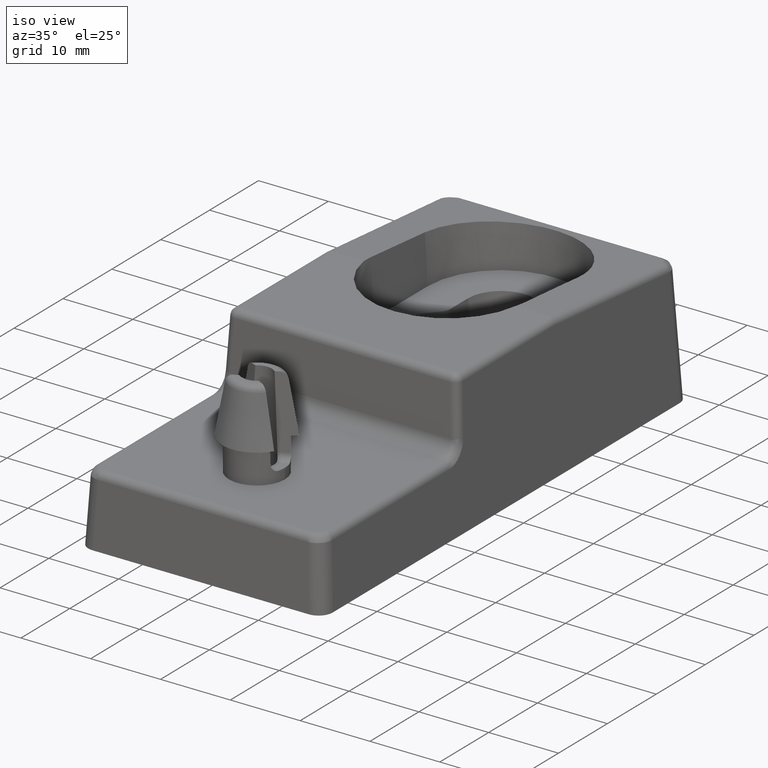
[diagram: clean part render]
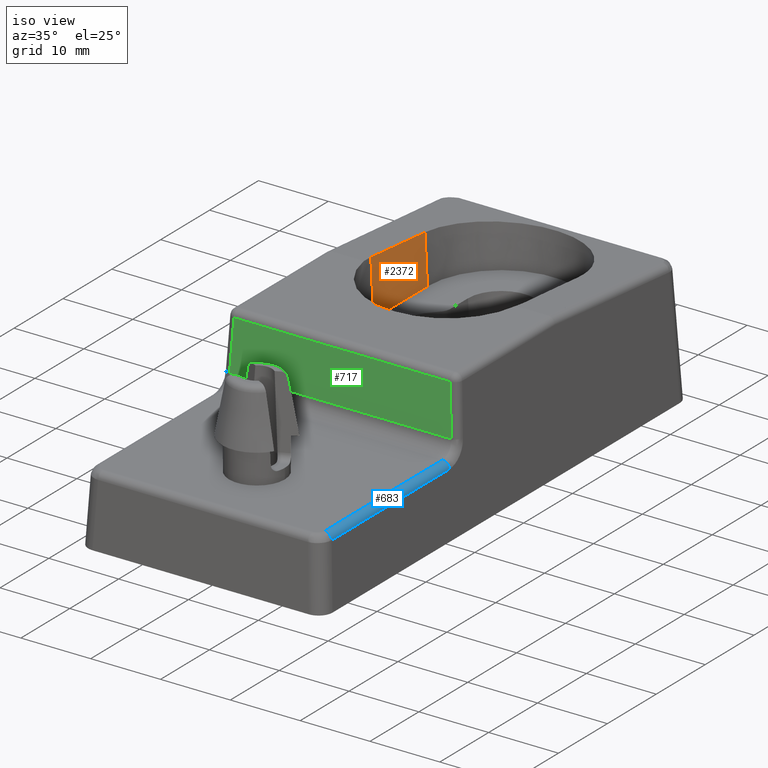
[diagram: same view with three faces highlighted in distinct colors, each labeled with its STEP entity id]
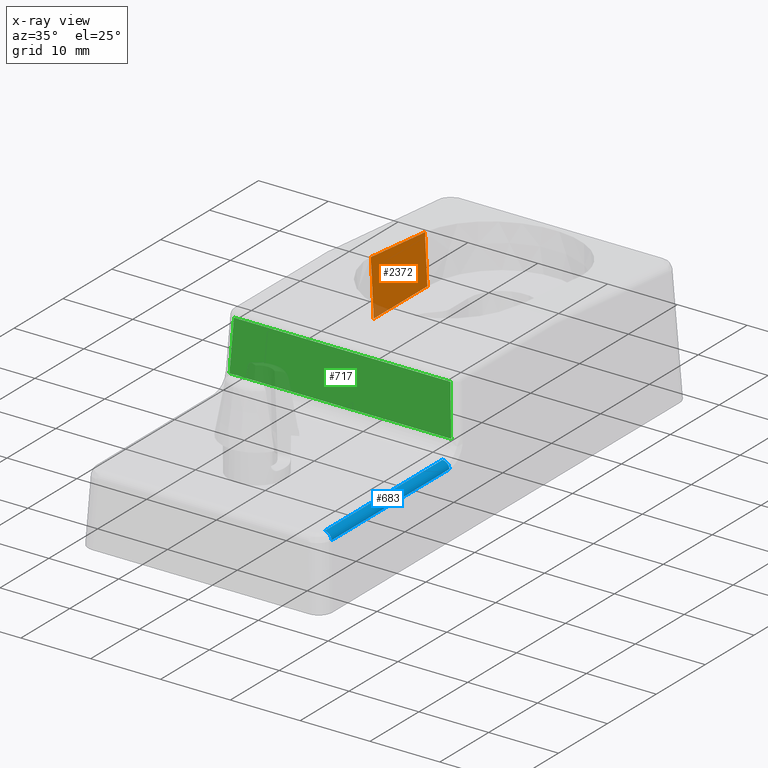
[diagram: x-ray of the same camera — body ghosted, the three highlighted faces saturated]
A machine part, iso view with three faces highlighted in distinct colors.
The next image is the same camera in x-ray (body ghosted, the three faces saturated) — at least one of them is partly hidden behind the body in this view.
Their STEP definitions:

[orange] entity #2372 — the highlighted planar face has unit normal (-0.9986, 0, -0.0523).
#147 = VERTEX_POINT ( 'NONE', #915 ) ;
#406 = CARTESIAN_POINT ( 'NONE',  ( -10.99999999999999800, 13.00000000000000200, 10.00000000000000000 ) ) ;
#423 = LINE ( 'NONE', #2983, #2966 ) ;
#512 = AXIS2_PLACEMENT_3D ( 'NONE', #1467, #2951, #2941 ) ;
#524 = CARTESIAN_POINT ( 'NONE',  ( -10.99999999999999600, 24.00000000000000000, 10.00000000000000000 ) ) ;
#590 = VERTEX_POINT ( 'NONE', #2674 ) ;
#615 = DIRECTION ( 'NONE',  ( 0.004567591281845903600, 0.9961843062872832700, -0.08715483358257433700 ) ) ;
#719 = VECTOR ( 'NONE', #755, 1000.000000000000000 ) ;
#748 = ORIENTED_EDGE ( 'NONE', *, *, #1313, .T. ) ;
#755 = DIRECTION ( 'NONE',  ( -0.05233595624294389000, -0.0000000000000000000, 0.9986295347545739400 ) ) ;
#797 = EDGE_LOOP ( 'NONE', ( #2701, #2338, #844, #748 ) ) ;
#844 = ORIENTED_EDGE ( 'NONE', *, *, #3038, .F. ) ;
#872 = VERTEX_POINT ( 'NONE', #2950 ) ;
#915 = CARTESIAN_POINT ( 'NONE',  ( -10.58073776573566600, 24.00000000000000000, 2.000000000000000000 ) ) ;
#1014 = VERTEX_POINT ( 'NONE', #2906 ) ;
#1038 = PLANE ( 'NONE',  #512 ) ;
#1054 = LINE ( 'NONE', #524, #719 ) ;
#1097 = DIRECTION ( 'NONE',  ( -0.05233595624294389000, 8.253491993848155400E-018, 0.9986295347545739400 ) ) ;
#1306 = LINE ( 'NONE', #406, #2069 ) ;
#1313 = EDGE_CURVE ( 'NONE', #147, #872, #1054, .T. ) ;
#1363 = LINE ( 'NONE', #1607, #2733 ) ;
#1467 = CARTESIAN_POINT ( 'NONE',  ( -10.99999999999999800, 13.00000000000000200, 10.00000000000000000 ) ) ;
#1607 = CARTESIAN_POINT ( 'NONE',  ( -10.58073776573566600, 13.00000000000000400, 2.000000000000000000 ) ) ;
#2069 = VECTOR ( 'NONE', #1097, 1000.000000000000000 ) ;
#2338 = ORIENTED_EDGE ( 'NONE', *, *, #2808, .F. ) ;
#2347 = DIRECTION ( 'NONE',  ( -1.577021341797097800E-016, -1.000000000000000000, 0.0000000000000000000 ) ) ;
#2372 = ADVANCED_FACE ( 'NONE', ( #2712 ), #1038, .F. ) ;
#2674 = CARTESIAN_POINT ( 'NONE',  ( -10.99274003608952200, 13.00000000000000200, 9.861471636276247600 ) ) ;
#2701 = ORIENTED_EDGE ( 'NONE', *, *, #2853, .F. ) ;
#2712 = FACE_OUTER_BOUND ( 'NONE', #797, .T. ) ;
#2733 = VECTOR ( 'NONE', #2347, 1000.000000000000000 ) ;
#2808 = EDGE_CURVE ( 'NONE', #1014, #590, #1306, .T. ) ;
#2853 = EDGE_CURVE ( 'NONE', #590, #872, #423, .T. ) ;
#2906 = CARTESIAN_POINT ( 'NONE',  ( -10.58073776573566800, 13.00000000000000200, 2.000000000000000000 ) ) ;
#2941 = DIRECTION ( 'NONE',  ( -0.05233595624294388300, 0.0000000000000000000, 0.9986295347545739400 ) ) ;
#2950 = CARTESIAN_POINT ( 'NONE',  ( -10.94230408384333600, 24.00000000000000000, 8.899096337491078800 ) ) ;
#2951 = DIRECTION ( 'NONE',  ( -0.9986295347545739400, 1.574860088856869800E-016, -0.05233595624294388300 ) ) ;
#2966 = VECTOR ( 'NONE', #615, 1000.000000000000100 ) ;
#2983 = CARTESIAN_POINT ( 'NONE',  ( -10.99279533398523900, 12.98793961795520100, 9.862526782982957500 ) ) ;
#3038 = EDGE_CURVE ( 'NONE', #147, #1014, #1363, .T. ) ;

[blue] entity #683 — the highlighted cylindrical surface (edge-blend (fillet) strip) has radius 1 mm, axis along (-0, 1, -0).
#19 = LINE ( 'NONE', #1507, #71 ) ;
#71 = VECTOR ( 'NONE', #1423, 1000.000000000000000 ) ;
#175 = ORIENTED_EDGE ( 'NONE', *, *, #367, .F. ) ;
#283 = CARTESIAN_POINT ( 'NONE',  ( 16.02603543328512400, 1.503758750126077000E-015, -1.000000000000000000 ) ) ;
#308 = VERTEX_POINT ( 'NONE', #2419 ) ;
#331 = DIRECTION ( 'NONE',  ( -1.000000000000000000, -9.383223669921868400E-017, 0.0000000000000000000 ) ) ;
#367 = EDGE_CURVE ( 'NONE', #2910, #308, #19, .T. ) ;
#396 = EDGE_CURVE ( 'NONE', #2002, #308, #2486, .T. ) ;
#460 = EDGE_CURVE ( 'NONE', #2832, #2910, #1778, .T. ) ;
#557 = EDGE_LOOP ( 'NONE', ( #706, #175, #2051, #2031 ) ) ;
#683 = ADVANCED_FACE ( 'NONE', ( #2122 ), #2248, .T. ) ;
#706 = ORIENTED_EDGE ( 'NONE', *, *, #396, .T. ) ;
#750 = DIRECTION ( 'NONE',  ( -1.000000000000000000, 6.938893903907222100E-015, 0.0000000000000000000 ) ) ;
#760 = CARTESIAN_POINT ( 'NONE',  ( 16.02603543328512400, -10.92292913342975800, -1.000000000000000000 ) ) ;
#1015 = DIRECTION ( 'NONE',  ( -9.383223669921878200E-017, 1.000000000000000000, -0.0000000000000000000 ) ) ;
#1173 = CARTESIAN_POINT ( 'NONE',  ( 16.02603543328512400, 1.503758750126077000E-015, 0.0000000000000000000 ) ) ;
#1339 = LINE ( 'NONE', #1173, #2297 ) ;
#1393 = CARTESIAN_POINT ( 'NONE',  ( 16.02603543328512700, -35.02740589853054600, -1.000000000000000000 ) ) ;
#1423 = DIRECTION ( 'NONE',  ( 9.383223669921877000E-017, -1.000000000000000000, -1.766936534556762600E-036 ) ) ;
#1507 = CARTESIAN_POINT ( 'NONE',  ( 17.02466496803969400, 36.97500000000000100, -0.9476640437570562600 ) ) ;
#1520 = CARTESIAN_POINT ( 'NONE',  ( 16.02603543328512700, -35.02740589853054600, 0.0000000000000000000 ) ) ;
#1712 = AXIS2_PLACEMENT_3D ( 'NONE', #1393, #2848, #750 ) ;
#1778 = CIRCLE ( 'NONE', #2681, 1.000000000000000000 ) ;
#2002 = VERTEX_POINT ( 'NONE', #1520 ) ;
#2031 = ORIENTED_EDGE ( 'NONE', *, *, #2244, .F. ) ;
#2051 = ORIENTED_EDGE ( 'NONE', *, *, #460, .F. ) ;
#2077 = CARTESIAN_POINT ( 'NONE',  ( 17.02466496803969800, -10.92292913342975800, -0.9476640437570561500 ) ) ;
#2122 = FACE_OUTER_BOUND ( 'NONE', #557, .T. ) ;
#2244 = EDGE_CURVE ( 'NONE', #2002, #2832, #1339, .T. ) ;
#2248 = CYLINDRICAL_SURFACE ( 'NONE', #3009, 1.000000000000000900 ) ;
#2297 = VECTOR ( 'NONE', #2634, 1000.000000000000000 ) ;
#2419 = CARTESIAN_POINT ( 'NONE',  ( 17.02466496803970100, -35.02740589853055300, -0.9476640437570573700 ) ) ;
#2486 = CIRCLE ( 'NONE', #1712, 1.000000000000000900 ) ;
#2634 = DIRECTION ( 'NONE',  ( -9.383223669921878200E-017, 1.000000000000000000, -0.0000000000000000000 ) ) ;
#2652 = DIRECTION ( 'NONE',  ( 0.0000000000000000000, 1.000000000000000000, 0.0000000000000000000 ) ) ;
#2666 = DIRECTION ( 'NONE',  ( 0.0000000000000000000, 0.0000000000000000000, 1.000000000000000000 ) ) ;
#2681 = AXIS2_PLACEMENT_3D ( 'NONE', #760, #2652, #2666 ) ;
#2832 = VERTEX_POINT ( 'NONE', #2996 ) ;
#2848 = DIRECTION ( 'NONE',  ( 6.948416467186246800E-015, 1.000000000000000000, -0.0000000000000000000 ) ) ;
#2910 = VERTEX_POINT ( 'NONE', #2077 ) ;
#2996 = CARTESIAN_POINT ( 'NONE',  ( 16.02603543328512400, -10.92292913342975800, 0.0000000000000000000 ) ) ;
#3009 = AXIS2_PLACEMENT_3D ( 'NONE', #283, #1015, #331 ) ;

[green] entity #717 — the highlighted planar face has unit normal (0, -0.9986, 0.0523).
#15 = CARTESIAN_POINT ( 'NONE',  ( 15.50195764045471100, -8.550587175209280100, 9.052335956242943700 ) ) ;
#26 = CARTESIAN_POINT ( 'NONE',  ( 15.87704052916603600, -8.925670063920609500, 1.895328087514112500 ) ) ;
#122 = ORIENTED_EDGE ( 'NONE', *, *, #599, .T. ) ;
#129 = EDGE_LOOP ( 'NONE', ( #870, #485, #1546, #122 ) ) ;
#276 = LINE ( 'NONE', #3008, #764 ) ;
#373 = LINE ( 'NONE', #2410, #1540 ) ;
#378 = VERTEX_POINT ( 'NONE', #15 ) ;
#485 = ORIENTED_EDGE ( 'NONE', *, *, #1617, .T. ) ;
#599 = EDGE_CURVE ( 'NONE', #2117, #378, #373, .T. ) ;
#717 = ADVANCED_FACE ( 'NONE', ( #2781 ), #830, .T. ) ;
#749 = AXIS2_PLACEMENT_3D ( 'NONE', #802, #1784, #2502 ) ;
#764 = VECTOR ( 'NONE', #2285, 1000.000000000000100 ) ;
#802 = CARTESIAN_POINT ( 'NONE',  ( -16.97499999999999400, -9.024999999999998600, 0.0000000000000000000 ) ) ;
#830 = PLANE ( 'NONE',  #749 ) ;
#870 = ORIENTED_EDGE ( 'NONE', *, *, #2479, .T. ) ;
#918 = CARTESIAN_POINT ( 'NONE',  ( -16.45092220716957200, -8.550587175209280100, 9.052335956242943700 ) ) ;
#985 = DIRECTION ( 'NONE',  ( -0.05226442768871398400, 0.05226442768871397000, 0.9972646886342373400 ) ) ;
#1270 = VECTOR ( 'NONE', #2494, 1000.000000000000000 ) ;
#1369 = CARTESIAN_POINT ( 'NONE',  ( -15.87704052916603300, -8.925670063920609500, 1.895328087514112500 ) ) ;
#1420 = LINE ( 'NONE', #2739, #1270 ) ;
#1540 = VECTOR ( 'NONE', #985, 1000.000000000000100 ) ;
#1546 = ORIENTED_EDGE ( 'NONE', *, *, #2978, .T. ) ;
#1595 = VECTOR ( 'NONE', #1827, 1000.000000000000000 ) ;
#1617 = EDGE_CURVE ( 'NONE', #2130, #3039, #276, .T. ) ;
#1784 = DIRECTION ( 'NONE',  ( 0.0000000000000000000, -0.9986295347545739400, 0.05233595624294388300 ) ) ;
#1827 = DIRECTION ( 'NONE',  ( -1.000000000000000000, -0.0000000000000000000, -0.0000000000000000000 ) ) ;
#2117 = VERTEX_POINT ( 'NONE', #26 ) ;
#2130 = VERTEX_POINT ( 'NONE', #2881 ) ;
#2232 = LINE ( 'NONE', #918, #1595 ) ;
#2285 = DIRECTION ( 'NONE',  ( -0.05226442768871397000, -0.05226442768871397000, -0.9972646886342373400 ) ) ;
#2410 = CARTESIAN_POINT ( 'NONE',  ( 15.45502049929434400, -8.503650034048915200, 9.947949962455084000 ) ) ;
#2479 = EDGE_CURVE ( 'NONE', #378, #2130, #2232, .T. ) ;
#2494 = DIRECTION ( 'NONE',  ( 1.000000000000000000, 0.0000000000000000000, 0.0000000000000000000 ) ) ;
#2502 = DIRECTION ( 'NONE',  ( 0.0000000000000000000, -0.05233595624294388300, -0.9986295347545739400 ) ) ;
#2739 = CARTESIAN_POINT ( 'NONE',  ( -16.97499999999999400, -8.925670063920609500, 1.895328087514112500 ) ) ;
#2781 = FACE_OUTER_BOUND ( 'NONE', #129, .T. ) ;
#2881 = CARTESIAN_POINT ( 'NONE',  ( -15.50195764045470200, -8.550587175209280100, 9.052335956242943700 ) ) ;
#2978 = EDGE_CURVE ( 'NONE', #3039, #2117, #1420, .T. ) ;
#3008 = CARTESIAN_POINT ( 'NONE',  ( -15.87976835604535900, -8.928397890799939100, 1.843278049969197000 ) ) ;
#3039 = VERTEX_POINT ( 'NONE', #1369 ) ;